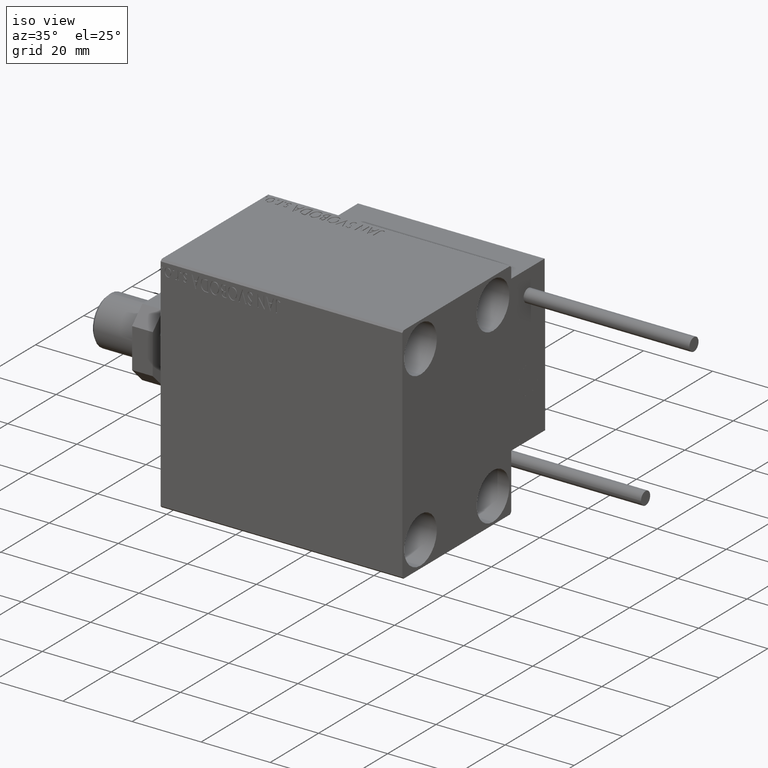
[diagram: clean part render]
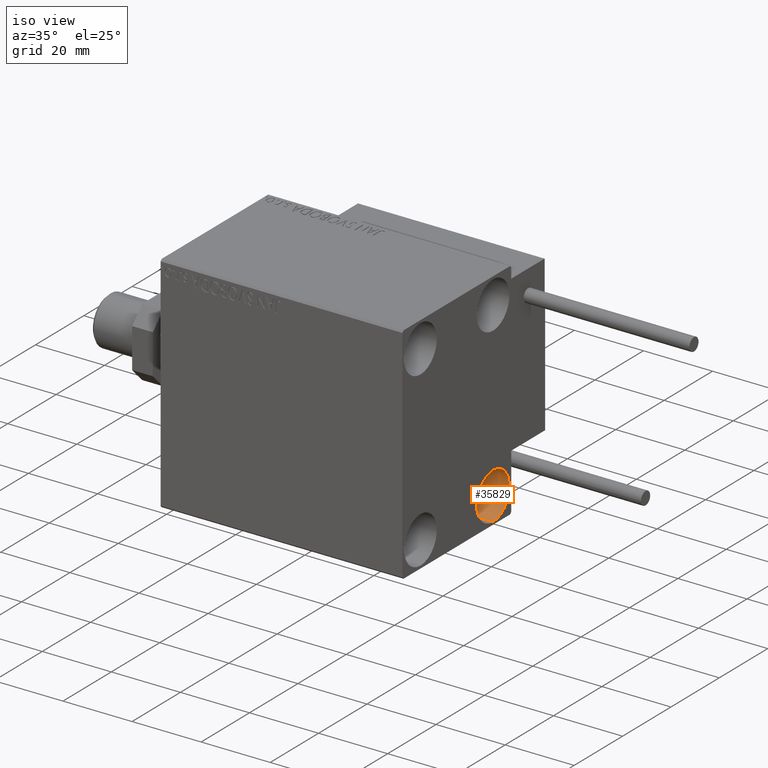
[diagram: same view with one face highlighted and labeled with its STEP entity id]
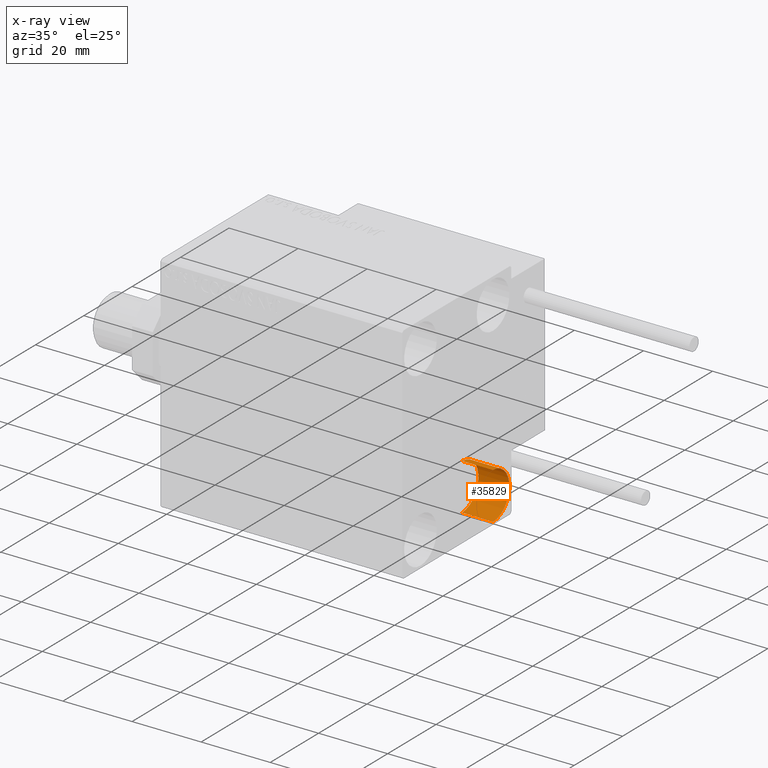
[diagram: x-ray of the same camera — body ghosted, the highlighted face saturated]
A machine part, iso view. The second image highlights one B-rep face of the part: STEP entity #35829.
The next image is the same camera in x-ray: the body ghosted, the highlighted face saturated — about 0% of this face is hidden behind the body in this view.
In plain terms, the highlighted cylindrical surface (edge-blend (fillet) strip) has radius 6.75 mm, axis along (1, 0, 0).
Its self-contained STEP definition (entity closure, byte-faithful):
#159 = DIRECTION ( 'NONE',  ( 1.000000000000000000, -0.000000000000000000, -0.000000000000000000 ) ) ;
#208 = CARTESIAN_POINT ( 'NONE',  ( 61.00000000000000711, 14.99999999999999645, -25.00000000000000000 ) ) ;
#663 = CARTESIAN_POINT ( 'NONE',  ( 61.00000000000000711, 14.99999999999999645, -31.75000000000000000 ) ) ;
#3160 = CIRCLE ( 'NONE', #45024, 6.749999999999999112 ) ;
#3461 = DIRECTION ( 'NONE',  ( -1.000000000000000000, -0.000000000000000000, -0.000000000000000000 ) ) ;
#4157 = VERTEX_POINT ( 'NONE', #25638 ) ;
#7273 = VECTOR ( 'NONE', #39799, 1000.000000000000000 ) ;
#8141 = EDGE_CURVE ( 'NONE', #47064, #44539, #16133, .T. ) ;
#9796 = CARTESIAN_POINT ( 'NONE',  ( 70.00000000000000000, 14.99999999999999645, -18.25000000000000355 ) ) ;
#12032 = DIRECTION ( 'NONE',  ( 0.000000000000000000, 0.000000000000000000, 1.000000000000000000 ) ) ;
#12810 = LINE ( 'NONE', #19512, #7273 ) ;
#14180 = CARTESIAN_POINT ( 'NONE',  ( 61.00000000000000711, 14.99999999999999645, -31.75000000000000000 ) ) ;
#15039 = CARTESIAN_POINT ( 'NONE',  ( 70.00000000000000000, 14.99999999999999645, -25.00000000000000000 ) ) ;
#16133 = CIRCLE ( 'NONE', #18614, 6.749999999999999112 ) ;
#17200 = EDGE_CURVE ( 'NONE', #47064, #39307, #12810, .T. ) ;
#17480 = FACE_OUTER_BOUND ( 'NONE', #27638, .T. ) ;
#18614 = AXIS2_PLACEMENT_3D ( 'NONE', #208, #47206, #12032 ) ;
#19512 = CARTESIAN_POINT ( 'NONE',  ( 61.00000000000000711, 14.99999999999999645, -18.25000000000000355 ) ) ;
#24908 = VECTOR ( 'NONE', #159, 1000.000000000000000 ) ;
#25638 = CARTESIAN_POINT ( 'NONE',  ( 70.00000000000000000, 14.99999999999999645, -31.75000000000000000 ) ) ;
#26203 = AXIS2_PLACEMENT_3D ( 'NONE', #37274, #44462, #29063 ) ;
#27638 = EDGE_LOOP ( 'NONE', ( #47925, #38386, #47088, #36084 ) ) ;
#29063 = DIRECTION ( 'NONE',  ( 0.000000000000000000, 0.000000000000000000, -1.000000000000000000 ) ) ;
#35829 = ADVANCED_FACE ( 'NONE', ( #17480 ), #43963, .F. ) ;
#36084 = ORIENTED_EDGE ( 'NONE', *, *, #38032, .F. ) ;
#37274 = CARTESIAN_POINT ( 'NONE',  ( 61.00000000000000711, 14.99999999999999645, -25.00000000000000000 ) ) ;
#38032 = EDGE_CURVE ( 'NONE', #39307, #4157, #3160, .T. ) ;
#38386 = ORIENTED_EDGE ( 'NONE', *, *, #8141, .T. ) ;
#38715 = LINE ( 'NONE', #663, #24908 ) ;
#39307 = VERTEX_POINT ( 'NONE', #9796 ) ;
#39799 = DIRECTION ( 'NONE',  ( 1.000000000000000000, -0.000000000000000000, -0.000000000000000000 ) ) ;
#40148 = DIRECTION ( 'NONE',  ( 0.000000000000000000, 0.000000000000000000, 1.000000000000000000 ) ) ;
#43963 = CYLINDRICAL_SURFACE ( 'NONE', #26203, 6.749999999999999112 ) ;
#44462 = DIRECTION ( 'NONE',  ( 1.000000000000000000, -0.000000000000000000, -0.000000000000000000 ) ) ;
#44539 = VERTEX_POINT ( 'NONE', #14180 ) ;
#45024 = AXIS2_PLACEMENT_3D ( 'NONE', #15039, #3461, #40148 ) ;
#47064 = VERTEX_POINT ( 'NONE', #48216 ) ;
#47088 = ORIENTED_EDGE ( 'NONE', *, *, #48996, .T. ) ;
#47206 = DIRECTION ( 'NONE',  ( -1.000000000000000000, -0.000000000000000000, -0.000000000000000000 ) ) ;
#47925 = ORIENTED_EDGE ( 'NONE', *, *, #17200, .F. ) ;
#48216 = CARTESIAN_POINT ( 'NONE',  ( 61.00000000000000711, 14.99999999999999645, -18.25000000000000355 ) ) ;
#48996 = EDGE_CURVE ( 'NONE', #44539, #4157, #38715, .T. ) ;